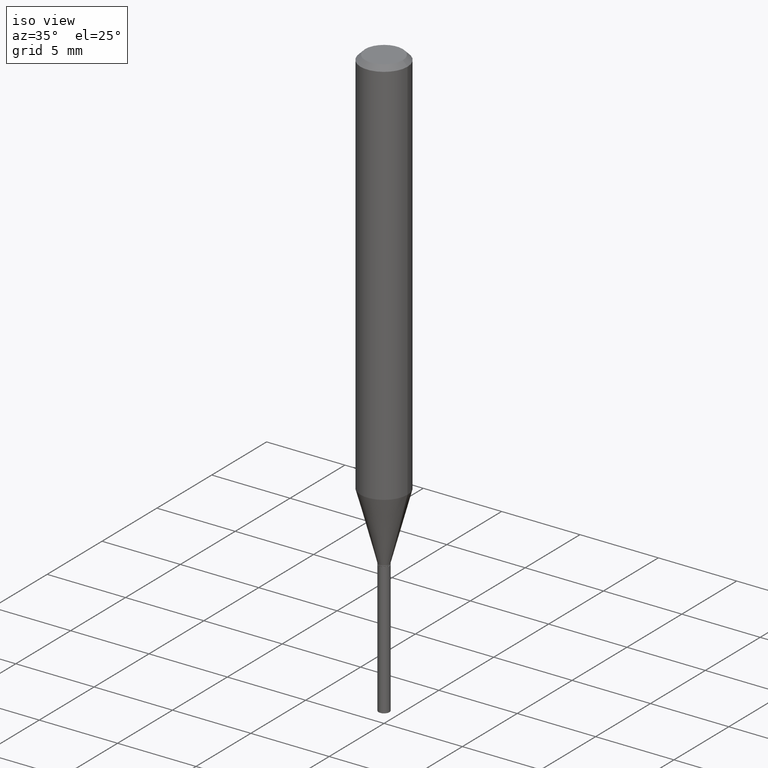
[diagram: clean part render]
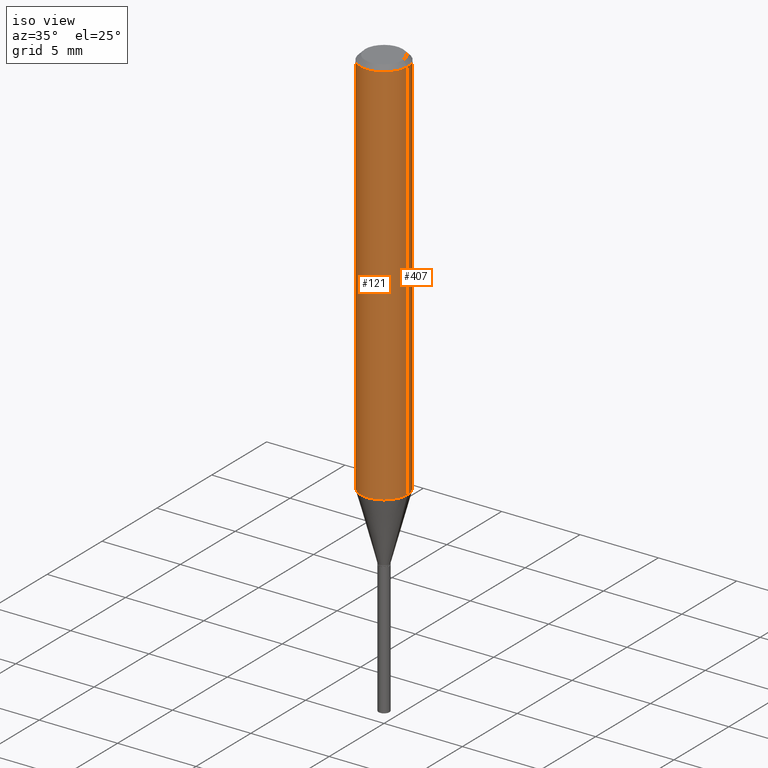
[diagram: same view with one multi-face feature highlighted, each face labeled with its STEP entity id]
A machine part, iso view. The highlighted faces form ONE feature: a constant-radius fillet chain: 2 tangent blend faces with common blend radius 1.4999 mm. The faces share edges in the B-rep.
Their STEP definitions:
[1] entity #121 (Cylinder):
#19 = CIRCLE ( 'NONE', #200, 0.05905000000000011628 ) ;
#29 = CARTESIAN_POINT ( 'NONE',  ( 0.000000000000000000, 0.000000000000000000, 0.000000000000000000 ) ) ;
#61 = EDGE_CURVE ( 'NONE', #175, #457, #478, .T. ) ;
#63 = EDGE_CURVE ( 'NONE', #206, #175, #19, .T. ) ;
#70 = EDGE_CURVE ( 'NONE', #206, #349, #211, .T. ) ;
#79 = DIRECTION ( 'NONE',  ( 1.000000000000000000, -6.982962677686266711E-15, 4.876176775795935793E-29 ) ) ;
#85 = CARTESIAN_POINT ( 'NONE',  ( 0.05905000000000013016, -3.847187489990594965E-15, -0.9837782907959944367 ) ) ;
#106 = DIRECTION ( 'NONE',  ( -2.445468806185136877E-29, 3.491481338843145188E-15, 1.000000000000000000 ) ) ;
#114 = AXIS2_PLACEMENT_3D ( 'NONE', #135, #271, #391 ) ;
#121 = ADVANCED_FACE ( 'NONE', ( #223 ), #365, .T. ) ;
#123 = CARTESIAN_POINT ( 'NONE',  ( -0.05905000000000013016, -3.015268058406879369E-15, -0.9837782907959944367 ) ) ;
#135 = CARTESIAN_POINT ( 'NONE',  ( 2.888098660104664204E-31, -4.123439461173780263E-17, -0.01181000000000007218 ) ) ;
#162 = CIRCLE ( 'NONE', #114, 0.05904999999999999832 ) ;
#167 = ORIENTED_EDGE ( 'NONE', *, *, #70, .F. ) ;
#175 = VERTEX_POINT ( 'NONE', #85 ) ;
#182 = DIRECTION ( 'NONE',  ( -2.445468806185136597E-29, 3.491481338843145583E-15, 1.000000000000000000 ) ) ;
#186 = CARTESIAN_POINT ( 'NONE',  ( 2.405799122343734810E-29, -3.434843543873219650E-15, -0.9837782907959944367 ) ) ;
#191 = CARTESIAN_POINT ( 'NONE',  ( 0.05905000000000006077, -4.123439461173744764E-16, 2.879382386107503023E-30 ) ) ;
#200 = AXIS2_PLACEMENT_3D ( 'NONE', #186, #182, #326 ) ;
#206 = VERTEX_POINT ( 'NONE', #123 ) ;
#211 = LINE ( 'NONE', #399, #471 ) ;
#223 = FACE_OUTER_BOUND ( 'NONE', #487, .T. ) ;
#271 = DIRECTION ( 'NONE',  ( -2.445468806185136597E-29, 3.491481338843145583E-15, 1.000000000000000000 ) ) ;
#286 = VECTOR ( 'NONE', #106, 39.37007874015748143 ) ;
#306 = ORIENTED_EDGE ( 'NONE', *, *, #336, .F. ) ;
#326 = DIRECTION ( 'NONE',  ( 1.000000000000000000, -6.982962677686266711E-15, 0.000000000000000000 ) ) ;
#336 = EDGE_CURVE ( 'NONE', #349, #457, #162, .T. ) ;
#349 = VERTEX_POINT ( 'NONE', #435 ) ;
#365 = CYLINDRICAL_SURFACE ( 'NONE', #393, 0.05905000000000006077 ) ;
#369 = DIRECTION ( 'NONE',  ( -2.445468806185136597E-29, 3.491481338843145583E-15, 1.000000000000000000 ) ) ;
#391 = DIRECTION ( 'NONE',  ( 1.000000000000000000, -6.982962677686266711E-15, 0.000000000000000000 ) ) ;
#393 = AXIS2_PLACEMENT_3D ( 'NONE', #29, #369, #79 ) ;
#399 = CARTESIAN_POINT ( 'NONE',  ( -0.05905000000000006077, 4.195754854663395916E-16, -2.904631170795524694E-30 ) ) ;
#431 = CARTESIAN_POINT ( 'NONE',  ( 0.05904999999999999832, -4.535783407291118600E-16, -0.01181000000000007218 ) ) ;
#435 = CARTESIAN_POINT ( 'NONE',  ( -0.05904999999999999832, -1.318463483776138408E-15, -0.01181000000000007218 ) ) ;
#447 = ORIENTED_EDGE ( 'NONE', *, *, #61, .T. ) ;
#457 = VERTEX_POINT ( 'NONE', #431 ) ;
#469 = ORIENTED_EDGE ( 'NONE', *, *, #63, .T. ) ;
#471 = VECTOR ( 'NONE', #472, 39.37007874015748143 ) ;
#472 = DIRECTION ( 'NONE',  ( -2.445468806185136877E-29, 3.491481338843145188E-15, 1.000000000000000000 ) ) ;
#478 = LINE ( 'NONE', #191, #286 ) ;
#487 = EDGE_LOOP ( 'NONE', ( #167, #469, #447, #306 ) ) ;
[2] entity #407 (Cylinder):
#22 = CARTESIAN_POINT ( 'NONE',  ( 0.000000000000000000, 0.000000000000000000, 0.000000000000000000 ) ) ;
#31 = CIRCLE ( 'NONE', #461, 0.05905000000000011628 ) ;
#57 = DIRECTION ( 'NONE',  ( -2.445468806185136597E-29, 3.491481338843145583E-15, 1.000000000000000000 ) ) ;
#61 = EDGE_CURVE ( 'NONE', #175, #457, #478, .T. ) ;
#64 = CYLINDRICAL_SURFACE ( 'NONE', #357, 0.05905000000000006077 ) ;
#70 = EDGE_CURVE ( 'NONE', #206, #349, #211, .T. ) ;
#72 = FACE_OUTER_BOUND ( 'NONE', #81, .T. ) ;
#81 = EDGE_LOOP ( 'NONE', ( #157, #420, #84, #229 ) ) ;
#84 = ORIENTED_EDGE ( 'NONE', *, *, #174, .F. ) ;
#85 = CARTESIAN_POINT ( 'NONE',  ( 0.05905000000000013016, -3.847187489990594965E-15, -0.9837782907959944367 ) ) ;
#104 = DIRECTION ( 'NONE',  ( 1.000000000000000000, -6.982962677686266711E-15, 0.000000000000000000 ) ) ;
#106 = DIRECTION ( 'NONE',  ( -2.445468806185136877E-29, 3.491481338843145188E-15, 1.000000000000000000 ) ) ;
#123 = CARTESIAN_POINT ( 'NONE',  ( -0.05905000000000013016, -3.015268058406879369E-15, -0.9837782907959944367 ) ) ;
#157 = ORIENTED_EDGE ( 'NONE', *, *, #480, .T. ) ;
#174 = EDGE_CURVE ( 'NONE', #457, #349, #425, .T. ) ;
#175 = VERTEX_POINT ( 'NONE', #85 ) ;
#176 = CARTESIAN_POINT ( 'NONE',  ( 2.405799122343734810E-29, -3.434843543873219650E-15, -0.9837782907959944367 ) ) ;
#191 = CARTESIAN_POINT ( 'NONE',  ( 0.05905000000000006077, -4.123439461173744764E-16, 2.879382386107503023E-30 ) ) ;
#206 = VERTEX_POINT ( 'NONE', #123 ) ;
#211 = LINE ( 'NONE', #399, #471 ) ;
#213 = AXIS2_PLACEMENT_3D ( 'NONE', #448, #303, #374 ) ;
#229 = ORIENTED_EDGE ( 'NONE', *, *, #61, .F. ) ;
#283 = DIRECTION ( 'NONE',  ( 1.000000000000000000, -6.982962677686266711E-15, 4.876176775795935793E-29 ) ) ;
#286 = VECTOR ( 'NONE', #106, 39.37007874015748143 ) ;
#303 = DIRECTION ( 'NONE',  ( -2.445468806185136597E-29, 3.491481338843145583E-15, 1.000000000000000000 ) ) ;
#349 = VERTEX_POINT ( 'NONE', #435 ) ;
#357 = AXIS2_PLACEMENT_3D ( 'NONE', #22, #479, #283 ) ;
#374 = DIRECTION ( 'NONE',  ( 1.000000000000000000, -6.982962677686266711E-15, 0.000000000000000000 ) ) ;
#399 = CARTESIAN_POINT ( 'NONE',  ( -0.05905000000000006077, 4.195754854663395916E-16, -2.904631170795524694E-30 ) ) ;
#407 = ADVANCED_FACE ( 'NONE', ( #72 ), #64, .T. ) ;
#420 = ORIENTED_EDGE ( 'NONE', *, *, #70, .T. ) ;
#425 = CIRCLE ( 'NONE', #213, 0.05904999999999999832 ) ;
#431 = CARTESIAN_POINT ( 'NONE',  ( 0.05904999999999999832, -4.535783407291118600E-16, -0.01181000000000007218 ) ) ;
#435 = CARTESIAN_POINT ( 'NONE',  ( -0.05904999999999999832, -1.318463483776138408E-15, -0.01181000000000007218 ) ) ;
#448 = CARTESIAN_POINT ( 'NONE',  ( 2.888098660104664204E-31, -4.123439461173780263E-17, -0.01181000000000007218 ) ) ;
#457 = VERTEX_POINT ( 'NONE', #431 ) ;
#461 = AXIS2_PLACEMENT_3D ( 'NONE', #176, #57, #104 ) ;
#471 = VECTOR ( 'NONE', #472, 39.37007874015748143 ) ;
#472 = DIRECTION ( 'NONE',  ( -2.445468806185136877E-29, 3.491481338843145188E-15, 1.000000000000000000 ) ) ;
#478 = LINE ( 'NONE', #191, #286 ) ;
#479 = DIRECTION ( 'NONE',  ( -2.445468806185136597E-29, 3.491481338843145583E-15, 1.000000000000000000 ) ) ;
#480 = EDGE_CURVE ( 'NONE', #175, #206, #31, .T. ) ;